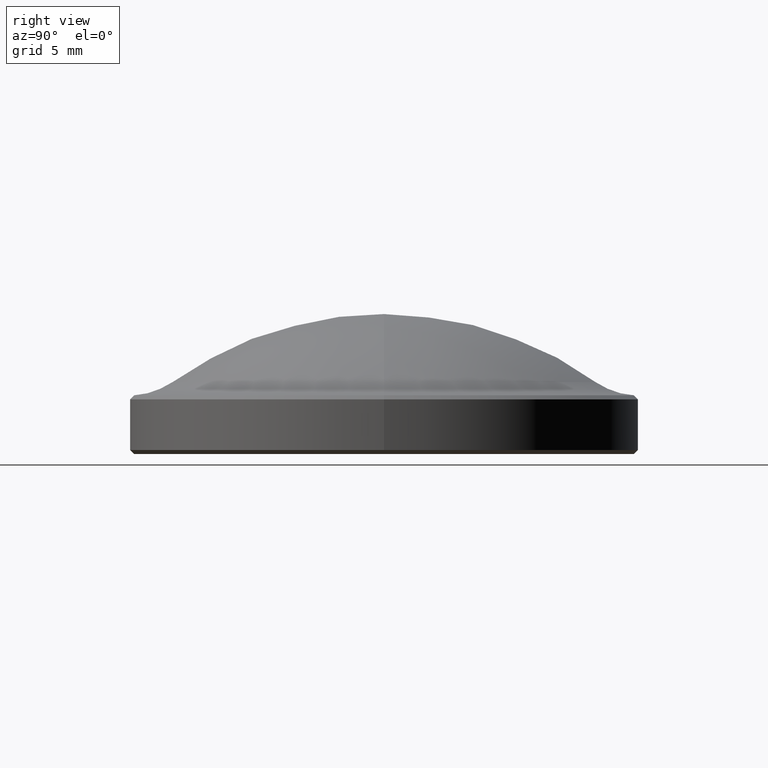
[diagram: clean part render]
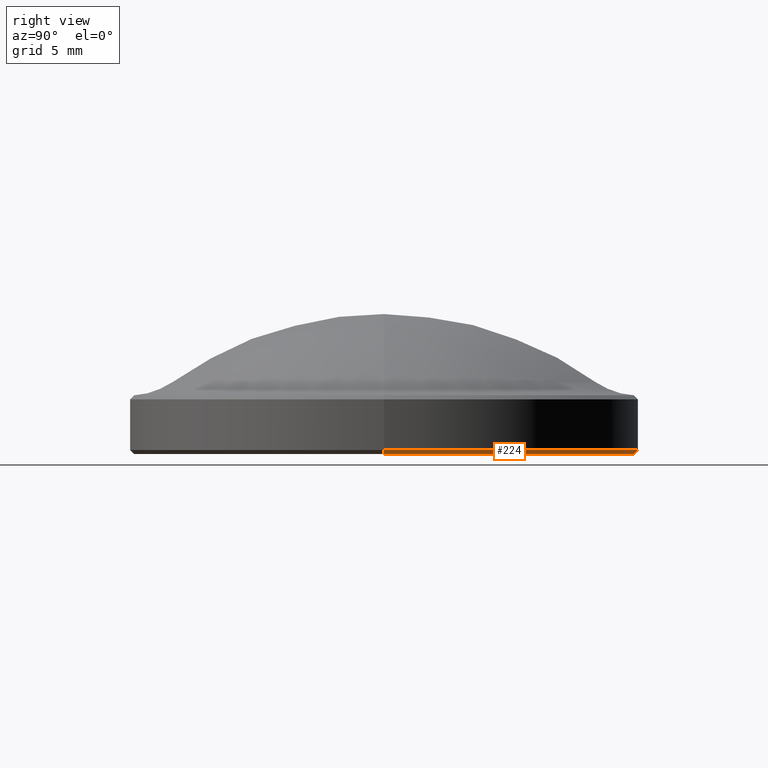
[diagram: same view with one face highlighted and labeled with its STEP entity id]
A machine part, right view. The second image highlights one B-rep face of the part: STEP entity #224.
In plain terms, the highlighted conical surface has half-angle 45 deg.
Its self-contained STEP definition (entity closure, byte-faithful):
#5 = ORIENTED_EDGE ( 'NONE', *, *, #248, .F. ) ;
#9 = CIRCLE ( 'NONE', #90, 12.69999999999999929 ) ;
#13 = DIRECTION ( 'NONE',  ( -0.000000000000000000, -0.000000000000000000, -1.000000000000000000 ) ) ;
#22 = VERTEX_POINT ( 'NONE', #163 ) ;
#28 = DIRECTION ( 'NONE',  ( -0.000000000000000000, -0.000000000000000000, 1.000000000000000000 ) ) ;
#47 = EDGE_CURVE ( 'NONE', #22, #254, #295, .T. ) ;
#49 = CARTESIAN_POINT ( 'NONE',  ( 0.000000000000000000, 0.000000000000000000, 0.2000000000000196065 ) ) ;
#57 = DIRECTION ( 'NONE',  ( 1.000000000000000000, 0.000000000000000000, 0.000000000000000000 ) ) ;
#68 = FACE_OUTER_BOUND ( 'NONE', #286, .T. ) ;
#75 = CARTESIAN_POINT ( 'NONE',  ( 12.69999999999999929, 1.555301434917138038E-15, 0.2000000000000196065 ) ) ;
#89 = CARTESIAN_POINT ( 'NONE',  ( 12.69999999999999929, 0.000000000000000000, 0.2000000000000196065 ) ) ;
#90 = AXIS2_PLACEMENT_3D ( 'NONE', #107, #28, #57 ) ;
#102 = ORIENTED_EDGE ( 'NONE', *, *, #47, .F. ) ;
#107 = CARTESIAN_POINT ( 'NONE',  ( 0.000000000000000000, 0.000000000000000000, 0.2000000000000196065 ) ) ;
#127 = DIRECTION ( 'NONE',  ( 1.000000000000000000, 0.000000000000000000, 0.000000000000000000 ) ) ;
#133 = CARTESIAN_POINT ( 'NONE',  ( -12.69999999999999929, 1.555301434917138433E-15, 0.2000000000000196065 ) ) ;
#139 = ORIENTED_EDGE ( 'NONE', *, *, #156, .F. ) ;
#148 = CIRCLE ( 'NONE', #167, 12.49999999999998224 ) ;
#156 = EDGE_CURVE ( 'NONE', #265, #22, #148, .T. ) ;
#157 = LINE ( 'NONE', #133, #297 ) ;
#163 = CARTESIAN_POINT ( 'NONE',  ( 12.49999999999998224, 0.000000000000000000, 0.000000000000000000 ) ) ;
#167 = AXIS2_PLACEMENT_3D ( 'NONE', #260, #13, #238 ) ;
#174 = DIRECTION ( 'NONE',  ( -0.000000000000000000, -0.000000000000000000, 1.000000000000000000 ) ) ;
#219 = DIRECTION ( 'NONE',  ( -0.7071067811865444641, 8.659560562354895880E-17, 0.7071067811865505703 ) ) ;
#224 = ADVANCED_FACE ( 'NONE', ( #68 ), #241, .T. ) ;
#225 = ORIENTED_EDGE ( 'NONE', *, *, #276, .T. ) ;
#231 = DIRECTION ( 'NONE',  ( 0.7071067811865444641, 0.000000000000000000, 0.7071067811865505703 ) ) ;
#238 = DIRECTION ( 'NONE',  ( 1.000000000000000000, 0.000000000000000000, 0.000000000000000000 ) ) ;
#241 = CONICAL_SURFACE ( 'NONE', #282, 12.69999999999999929, 0.7853981633974439491 ) ;
#242 = CARTESIAN_POINT ( 'NONE',  ( -12.49999999999998224, 1.543054966925663892E-15, 0.000000000000000000 ) ) ;
#248 = EDGE_CURVE ( 'NONE', #254, #314, #9, .T. ) ;
#254 = VERTEX_POINT ( 'NONE', #75 ) ;
#260 = CARTESIAN_POINT ( 'NONE',  ( 0.000000000000000000, 0.000000000000000000, 0.000000000000000000 ) ) ;
#265 = VERTEX_POINT ( 'NONE', #242 ) ;
#276 = EDGE_CURVE ( 'NONE', #265, #314, #157, .T. ) ;
#282 = AXIS2_PLACEMENT_3D ( 'NONE', #49, #174, #127 ) ;
#286 = EDGE_LOOP ( 'NONE', ( #139, #225, #5, #102 ) ) ;
#287 = CARTESIAN_POINT ( 'NONE',  ( -12.69999999999999929, 0.000000000000000000, 0.2000000000000196065 ) ) ;
#295 = LINE ( 'NONE', #89, #298 ) ;
#297 = VECTOR ( 'NONE', #219, 1000.000000000000227 ) ;
#298 = VECTOR ( 'NONE', #231, 1000.000000000000227 ) ;
#314 = VERTEX_POINT ( 'NONE', #287 ) ;